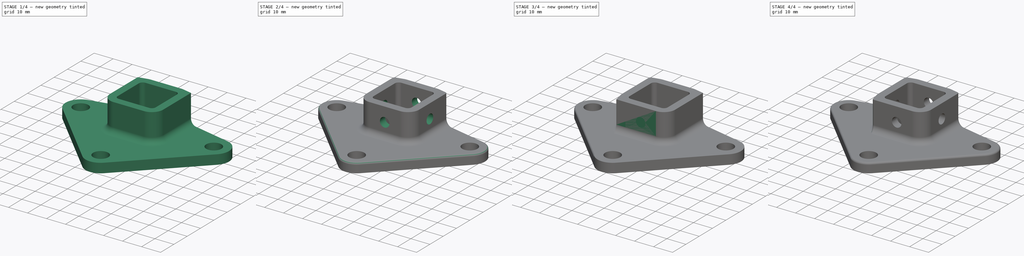
[diagram: build sequence overview — one tinted view per stage of 4, left to right]
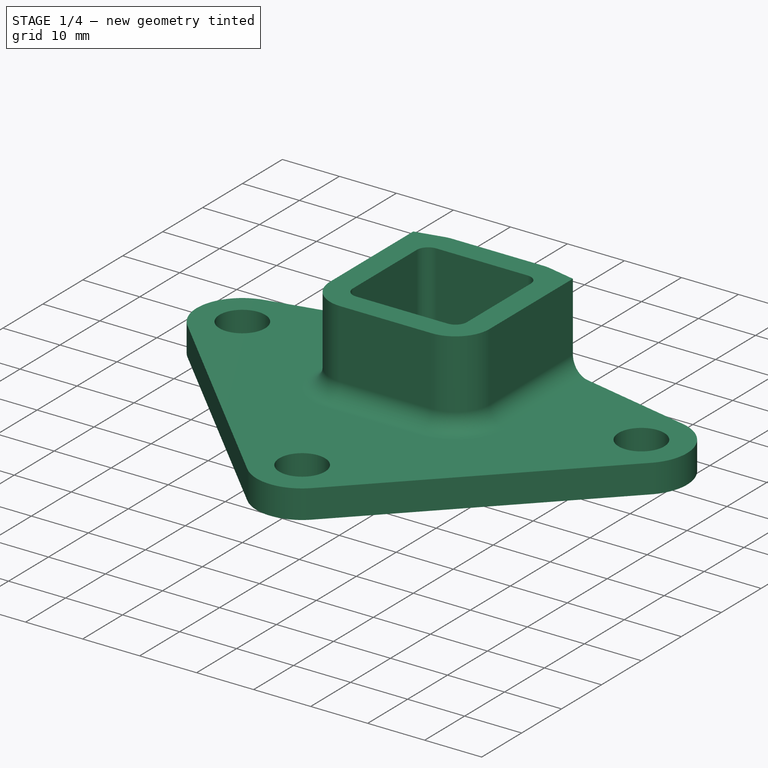
[diagram: stage 1 of 4 — iso view after this stage's code; geometry added in this stage tinted green]
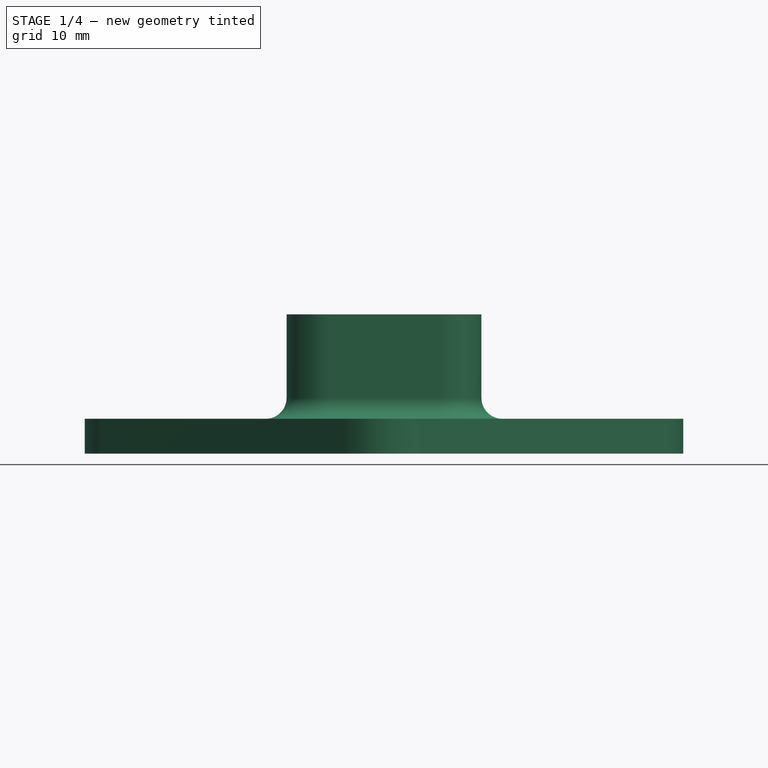
[diagram: stage 1 of 4 — front view after this stage's code; geometry added in this stage tinted green]
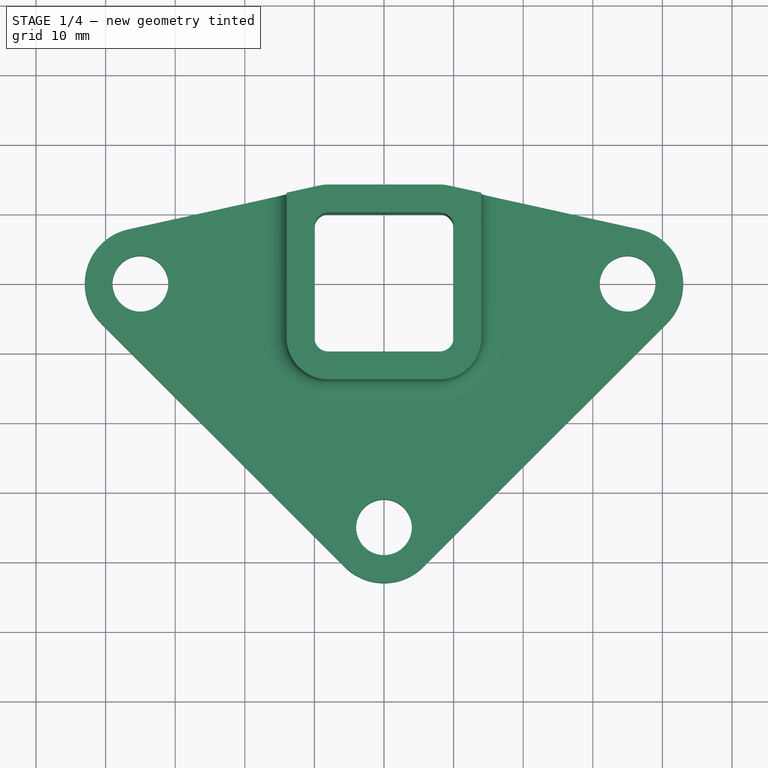
[diagram: stage 1 of 4 — top view after this stage's code; geometry added in this stage tinted green]
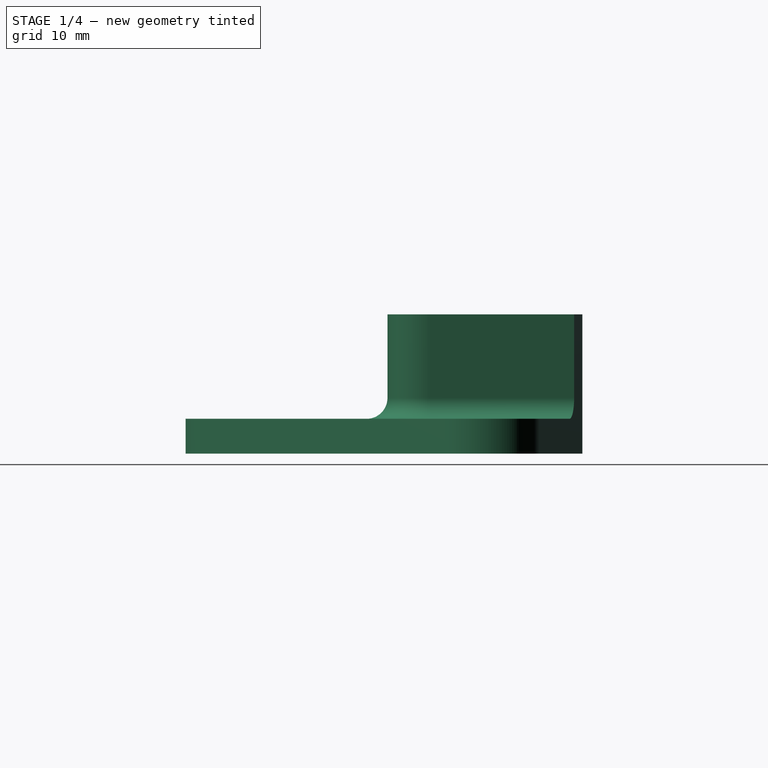
[diagram: stage 1 of 4 — right view after this stage's code; geometry added in this stage tinted green]
FCSTD DOCUMENT  (FreeCAD 0.18R15969 (Git))
Label: 2-way-bearing-holder
License: All rights reserved
LicenseURL: http://en.wikipedia.org/wiki/All_rights_reserved
objects: Sketcher::SketchObject×6, PartDesign::Pad×4, PartDesign::Fillet×4, PartDesign::Pocket×2, PartDesign::PolarPattern×2, PartDesign::Body×2
note: 26 computed .brp shape members not serialized (recipe doc carries the construction recipe); baked Part::Feature solids carry a one-line shape summary decoded from their .brp

FEATURE [PartDesign::Body] Body
  Group = -> [Sketch,Pad,Sketch001,Pad001,Fillet,Fillet001,Sketch002,Pocket,PolarPattern]
  Origin = -> Origin
  Tip = -> PolarPattern
FEATURE [Sketcher::SketchObject] Sketch003
  MapMode = 5
  Support = -> [XY_Plane001]
  sketch-geometry (27):
    g0: LineSegment StartX=-8 StartY=10 StartZ=0 EndX=8 EndY=10 EndZ=0
    g1: LineSegment StartX=10 StartY=8 StartZ=0 EndX=10 EndY=-8 EndZ=0
    g2: LineSegment StartX=8 StartY=-10 StartZ=0 EndX=-8 EndY=-10 EndZ=0
    g3: LineSegment StartX=-10 StartY=-8 StartZ=0 EndX=-10 EndY=8 EndZ=0
    g4: ArcOfCircle CenterX=-8 CenterY=8 CenterZ=0 NormalX=0 NormalY=0 NormalZ=1 AngleXU=0 Radius=2 StartAngle=1.5708 EndAngle=3.14159
    g5: ArcOfCircle CenterX=8 CenterY=8 CenterZ=0 NormalX=0 NormalY=0 NormalZ=1 AngleXU=0 Radius=2 StartAngle=0 EndAngle=1.5708
    g6: ArcOfCircle CenterX=8 CenterY=-8 CenterZ=0 NormalX=0 NormalY=0 NormalZ=1 AngleXU=0 Radius=2 StartAngle=4.71239 EndAngle=6.28319
    g7: ArcOfCircle CenterX=-8 CenterY=-8 CenterZ=0 NormalX=0 NormalY=0 NormalZ=1 AngleXU=0 Radius=2 StartAngle=3.14159 EndAngle=4.71239
    g8: LineSegment [constr] StartX=-8 StartY=8 StartZ=0 EndX=-9e-16 EndY=0 EndZ=0
    g9: LineSegment [constr] StartX=0 StartY=0 StartZ=0 EndX=8 EndY=8 EndZ=0
    g10: LineSegment [constr] StartX=0 StartY=0 StartZ=0 EndX=-8 EndY=-8 EndZ=0
    g11: LineSegment StartX=-8 StartY=14 StartZ=0 EndX=8 EndY=14 EndZ=0
    g12: LineSegment StartX=9.29165 StartY=13.8593 StartZ=0 EndX=36.7222 EndY=7.81243 EndZ=0
    g13: LineSegment StartX=40.6569 StartY=-5.65685 StartZ=0 EndX=5.65685 EndY=-40.6569 EndZ=0
    g14: LineSegment StartX=-5.65685 StartY=-40.6569 StartZ=0 EndX=-40.6569 EndY=-5.65685 EndZ=0
    g15: ArcOfCircle CenterX=8 CenterY=8 CenterZ=0 NormalX=0 NormalY=0 NormalZ=1 AngleXU=0 Radius=6 StartAngle=1.35382 EndAngle=1.5708
    g16: ArcOfCircle CenterX=35 CenterY=0 CenterZ=0 NormalX=0 NormalY=0 NormalZ=1 AngleXU=0 Radius=8 StartAngle=5.49779 EndAngle=7.63701
    g17: ArcOfCircle CenterX=0 CenterY=-35 CenterZ=0 NormalX=0 NormalY=0 NormalZ=1 AngleXU=0 Radius=8 StartAngle=3.92699 EndAngle=5.49779
    g18: LineSegment [constr] StartX=0 StartY=0 StartZ=0 EndX=35 EndY=0 EndZ=0
    g19: LineSegment [constr] StartX=0 StartY=0 StartZ=0 EndX=0 EndY=-35 EndZ=0
    g20: Circle CenterX=35 CenterY=0 CenterZ=0 NormalX=0 NormalY=0 NormalZ=1 AngleXU=0 Radius=4
    g21: Circle CenterX=0 CenterY=-35 CenterZ=0 NormalX=0 NormalY=0 NormalZ=1 AngleXU=0 Radius=4
    g22: LineSegment StartX=-9.29165 StartY=13.8593 StartZ=0 EndX=-36.7222 EndY=7.81243 EndZ=0
    g23: ArcOfCircle CenterX=-8 CenterY=8 CenterZ=0 NormalX=0 NormalY=0 NormalZ=1 AngleXU=0 Radius=6 StartAngle=1.5708 EndAngle=1.78777
    g24: Circle CenterX=-35 CenterY=0 CenterZ=0 NormalX=0 NormalY=0 NormalZ=1 AngleXU=0 Radius=4
    g25: LineSegment [constr] StartX=-35 StartY=0 StartZ=0 EndX=0 EndY=0 EndZ=0
    g26: ArcOfCircle CenterX=-35 CenterY=0 CenterZ=0 NormalX=0 NormalY=0 NormalZ=1 AngleXU=0 Radius=8 StartAngle=1.78777 EndAngle=3.92699
  constraints (61):
    c: Horizontal(g0)
    c: Horizontal(g2)
    c: Vertical(g1)
    c: Vertical(g3)
    c: Tangent(g3,g4) = 1.5708
    c: Tangent(g0,g4) = 1.5708
    c: Tangent(g0,g5) = 1.5708
    c: Tangent(g1,g5) = 1.5708
    c: Tangent(g1,g6) = 1.5708
    c: Tangent(g2,g6) = 1.5708
    c: Tangent(g2,g7) = 1.5708
    c: Tangent(g3,g7) = 1.5708
    c: Radius(g7) = 2
    c: Equal(g7,g4)
    c: Equal(g7,g5)
    c: Equal(g7,g6)
    c: DistanceX(g3,g1) = 20
    c: Equal(g3,g0)
    c: Coincident(g8,g4)
    c: Coincident(g8,g-1)
    c: Coincident(g9,g-1)
    c: Coincident(g9,g5)
    c: Coincident(g10,g-1)
    c: Coincident(g10,g7)
    c: Equal(g10,g8)
    c: Equal(g8,g9)
    c: Horizontal(g11)
    c: Tangent(g11,g15) = 1.5708
    c: Tangent(g12,g15) = 1.5708
    c: Tangent(g12,g16) = 1.5708
    c: Tangent(g13,g16) = 1.5708
    c: Tangent(g13,g17) = 1.5708
    c: Tangent(g14,g17) = 1.5708
    c: Coincident(g15,g5)
    c: PointOnObject(g16,g-1)
    c: PointOnObject(g17,g-2)
    c: Equal(g17,g16)
    c: Coincident(g18,g-1)
    c: Coincident(g18,g16)
    c: Coincident(g19,g-1)
    c: Coincident(g19,g17)
    c: Equal(g19,g18)
    c: DistanceX(g18,g18) = 35
    c: Coincident(g20,g16)
    c: Coincident(g21,g17)
    c: Equal(g21,g20)
    c: Radius(g20) = 4
    c: Radius(g16) = 8
    c: Tangent(g22,g23) = -1.5708
    c: Tangent(g11,g23) = 1.5708
    c: Coincident(g23,g4)
    c: DistanceY(g0,g11) = 4
    c: PointOnObject(g24,g-1)
    c: Equal(g24,g20)
    c: Coincident(g25,g24)
    c: Coincident(g25,g-1)
    c: Equal(g25,g18)
    c: Tangent(g14,g26) = 1.5708
    c: Tangent(g22,g26) = -1.5708
    c: Coincident(g26,g24)
    c: Equal(g26,g16)
FEATURE [PartDesign::Pad] Pad002
  Length = 5
  Length2 = 100
  Profile = -> Sketch003
  Refine = true
  Type = 0
FEATURE [Sketcher::SketchObject] Sketch004
  ExternalGeometry = -> [Pad002]
  MapMode = 5
  Placement = pos=(0,0,5) rot=(0,0,1;0rad)
  Support = -> [Pad002]
  sketch-geometry (18):
    g0: LineSegment StartX=-14 StartY=12.8214 StartZ=0 EndX=-14 EndY=-8 EndZ=0
    g1: LineSegment StartX=-8 StartY=-14 StartZ=0 EndX=8 EndY=-14 EndZ=0
    g2: LineSegment StartX=14 StartY=-8 StartZ=0 EndX=14 EndY=12.8214 EndZ=0
    g3: ArcOfCircle CenterX=-8 CenterY=-8 CenterZ=0 NormalX=0 NormalY=0 NormalZ=1 AngleXU=0 Radius=6 StartAngle=3.14159 EndAngle=4.71239
    g4: ArcOfCircle CenterX=8 CenterY=-8 CenterZ=0 NormalX=0 NormalY=0 NormalZ=1 AngleXU=0 Radius=6 StartAngle=4.71239 EndAngle=6.28319
    g5: LineSegment StartX=-14 StartY=12.8214 StartZ=0 EndX=-9.29165 EndY=13.8593 EndZ=0
    g6: LineSegment StartX=9.29165 StartY=13.8593 StartZ=0 EndX=14 EndY=12.8214 EndZ=0
    g7: LineSegment StartX=8 StartY=14 StartZ=0 EndX=-8 EndY=14 EndZ=0
    g8: ArcOfCircle CenterX=-8 CenterY=8 CenterZ=0 NormalX=0 NormalY=0 NormalZ=1 AngleXU=0 Radius=6 StartAngle=1.5708 EndAngle=1.78777
    g9: ArcOfCircle CenterX=8 CenterY=8 CenterZ=0 NormalX=0 NormalY=0 NormalZ=1 AngleXU=0 Radius=6 StartAngle=1.35382 EndAngle=1.5708
    g10: LineSegment StartX=-8 StartY=10 StartZ=0 EndX=8 EndY=10 EndZ=0
    g11: LineSegment StartX=10 StartY=8 StartZ=0 EndX=10 EndY=-8 EndZ=0
    g12: LineSegment StartX=8 StartY=-10 StartZ=0 EndX=-8 EndY=-10 EndZ=0
    g13: LineSegment StartX=-10 StartY=-8 StartZ=0 EndX=-10 EndY=8 EndZ=0
    g14: ArcOfCircle CenterX=-8 CenterY=8 CenterZ=0 NormalX=0 NormalY=0 NormalZ=1 AngleXU=0 Radius=2 StartAngle=1.5708 EndAngle=3.14159
    g15: ArcOfCircle CenterX=8 CenterY=8 CenterZ=0 NormalX=0 NormalY=0 NormalZ=1 AngleXU=0 Radius=2 StartAngle=0 EndAngle=1.5708
    g16: ArcOfCircle CenterX=8 CenterY=-8 CenterZ=0 NormalX=0 NormalY=0 NormalZ=1 AngleXU=0 Radius=2 StartAngle=4.71239 EndAngle=6.28319
    g17: ArcOfCircle CenterX=-8 CenterY=-8 CenterZ=0 NormalX=0 NormalY=0 NormalZ=1 AngleXU=0 Radius=2 StartAngle=3.14159 EndAngle=4.71239
  constraints (37):
    c: PointOnObject(g0,g-3)
    c: Horizontal(g1)
    c: PointOnObject(g2,g-7)
    c: Vertical(g2)
    c: Tangent(g0,g3) = -1.5708
    c: Tangent(g1,g3) = -1.5708
    c: Tangent(g1,g4) = -1.5708
    c: Tangent(g2,g4) = -1.5708
    c: Coincident(g5,g0)
    c: Coincident(g5,g-4)
    c: Coincident(g6,g-7)
    c: Coincident(g6,g2)
    c: Coincident(g7,g-6)
    c: Coincident(g8,g5)
    c: Coincident(g9,g6)
    c: Coincident(g9,g7)
    c: Tangent(g8,g7) = -1.5708
    c: Tangent(g13,g14) = 1.5708
    c: Tangent(g10,g14) = 1.5708
    c: Tangent(g10,g15) = 1.5708
    c: Tangent(g11,g15) = 1.5708
    c: Tangent(g11,g16) = 1.5708
    c: Tangent(g12,g16) = 1.5708
    c: Tangent(g12,g17) = 1.5708
    c: Tangent(g13,g17) = 1.5708
    c: Coincident(g3,g-11)
    c: Coincident(g17,g3)
    c: Coincident(g4,g-10)
    c: Coincident(g16,g4)
    c: Coincident(g15,g9)
    c: Coincident(g14,g8)
    c: Coincident(g8,g-8)
    c: Coincident(g10,g-8)
    c: Coincident(g12,g-10)
    c: Vertical(g11)
    c: DistanceY(g1,g12) = 4
    c: Vertical(g0)
FEATURE [PartDesign::Pad] Pad003
  BaseFeature = -> Pad002
  Length = 15
  Length2 = 100
  Profile = -> Sketch004
  Refine = true
  Type = 0
FEATURE [PartDesign::Fillet] Fillet002
  Base = -> Pad003 [Edge43]
  BaseFeature = -> Pad003
  Radius = 3
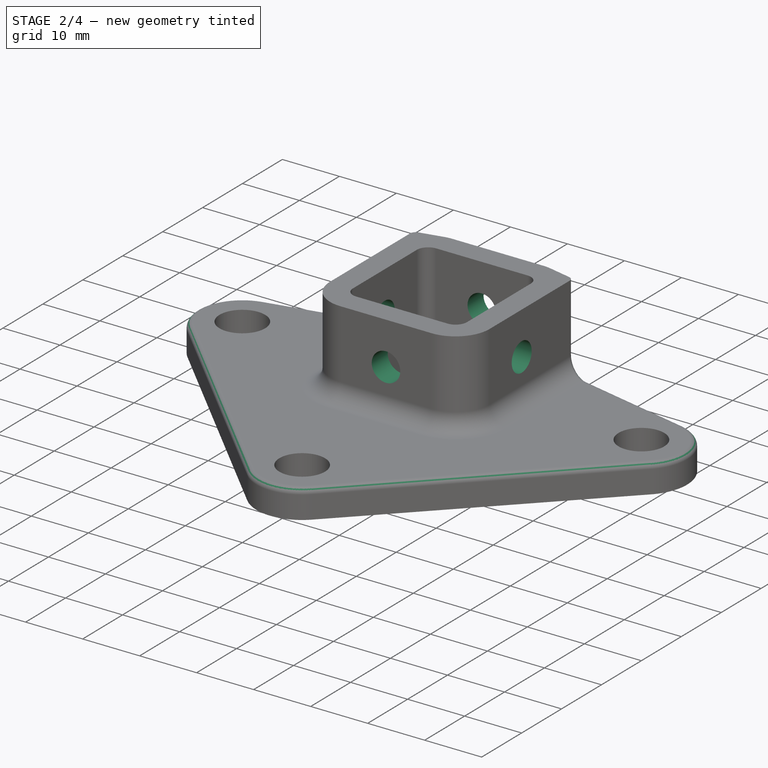
[diagram: stage 2 of 4 — iso view after this stage's code; geometry added in this stage tinted green]
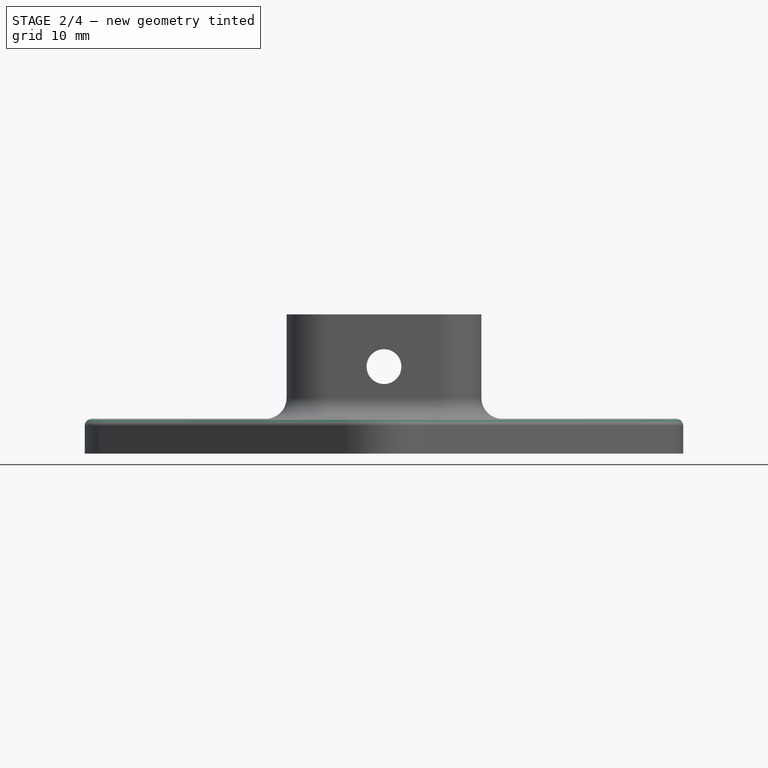
[diagram: stage 2 of 4 — front view after this stage's code; geometry added in this stage tinted green]
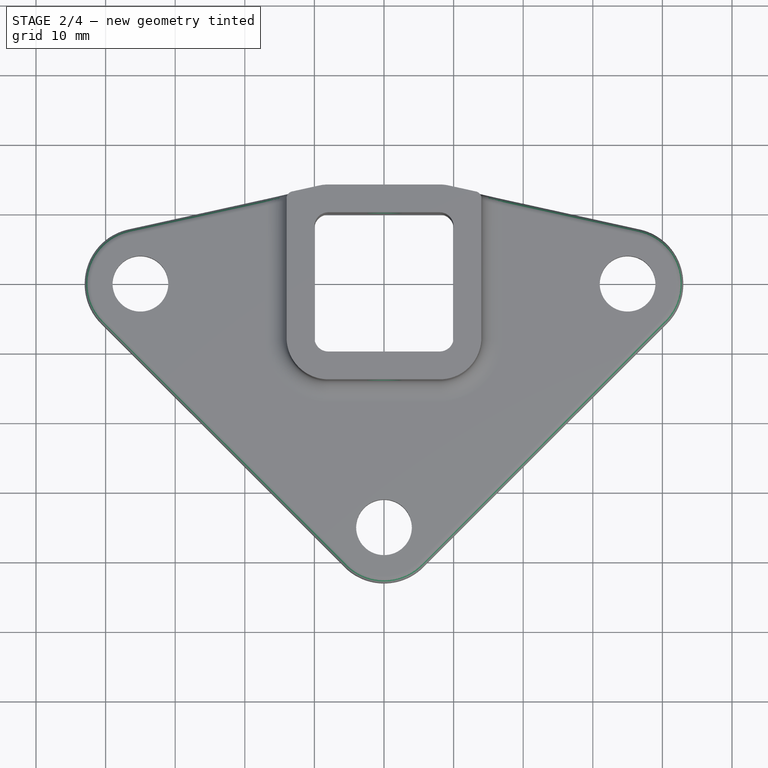
[diagram: stage 2 of 4 — top view after this stage's code; geometry added in this stage tinted green]
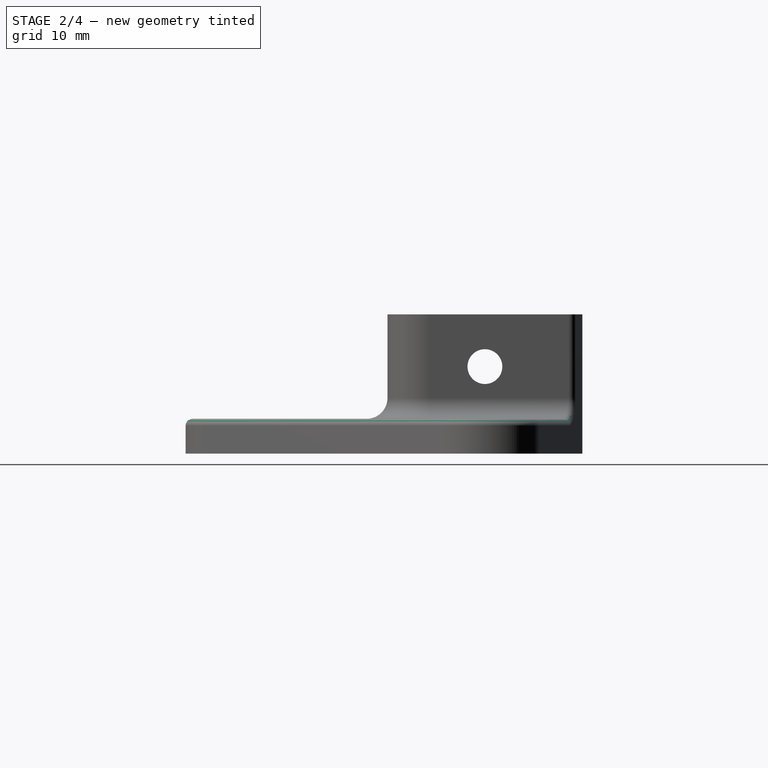
[diagram: stage 2 of 4 — right view after this stage's code; geometry added in this stage tinted green]
FEATURE [PartDesign::Fillet] Fillet003
  Base = -> Fillet002 [Edge7]
  BaseFeature = -> Fillet002
  Radius = 1
FEATURE [Sketcher::SketchObject] Sketch005
  MapMode = 5
  Placement = pos=(3e-16,14,1e-16) rot=(0,0.707107,0.707107;3.14159rad)
  Support = -> [Fillet003]
  sketch-geometry (1):
    g0: Circle CenterX=0 CenterY=12.5 CenterZ=0 NormalX=0 NormalY=0 NormalZ=1 AngleXU=0 Radius=2.5
  constraints (3):
    c: PointOnObject(g0,g-2)
    c: Radius(g0) = 2.5
    c: DistanceY(g-1,g0) = 12.5
FEATURE [PartDesign::Pocket] Pocket001
  BaseFeature = -> Fillet003
  Length = 10
  Length2 = 100
  Midplane = true
  Profile = -> Sketch005
  Refine = true
  Type = 0
FEATURE [PartDesign::PolarPattern] PolarPattern001
  Angle = 360
  Axis = -> Z_Axis001
  BaseFeature = -> Pocket001
  Occurrences = 4
  Originals = -> [Pocket001]
  Refine = true
FEATURE [PartDesign::Body] Body001
  Group = -> [Sketch003,Pad002,Sketch004,Pad003,Fillet002,Fillet003,Sketch005,Pocket001,PolarPattern001]
  Origin = -> Origin001
  Tip = -> PolarPattern001
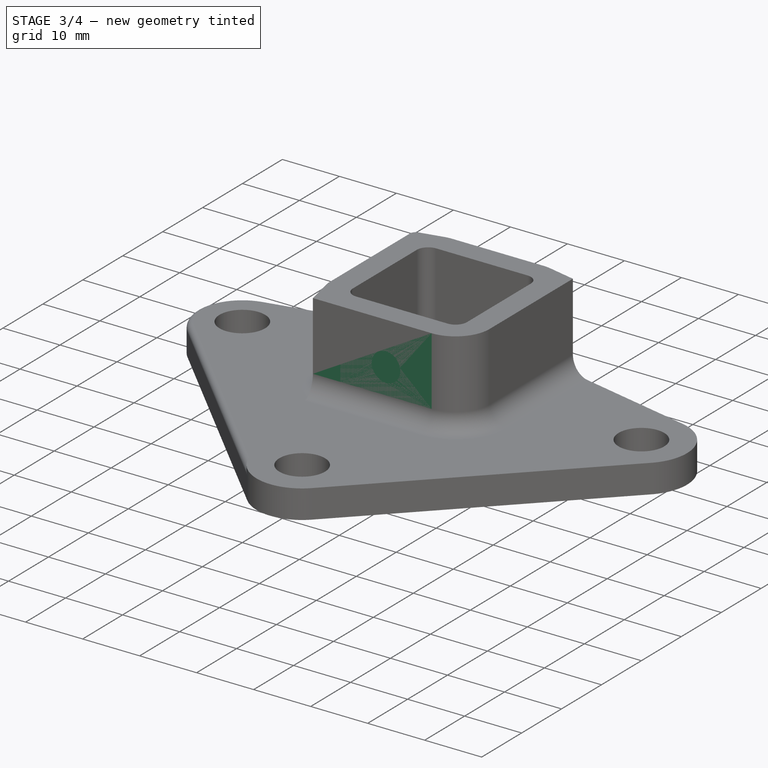
[diagram: stage 3 of 4 — iso view after this stage's code; geometry added in this stage tinted green]
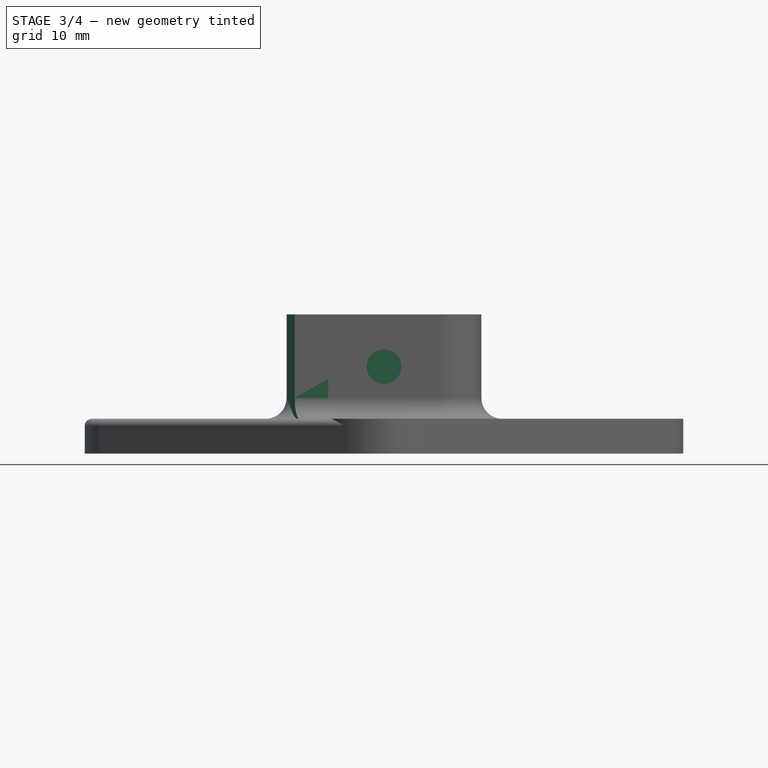
[diagram: stage 3 of 4 — front view after this stage's code; geometry added in this stage tinted green]
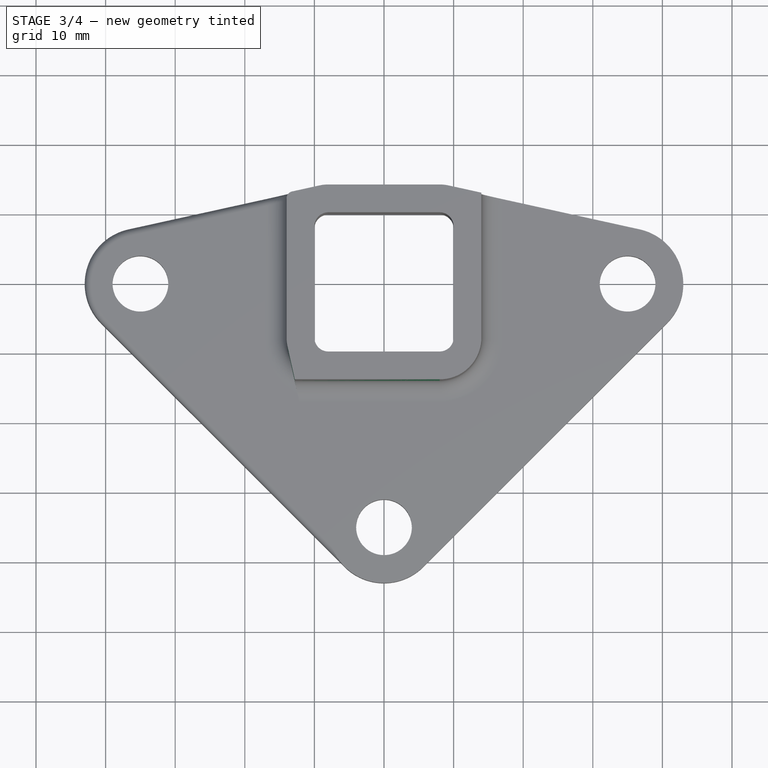
[diagram: stage 3 of 4 — top view after this stage's code; geometry added in this stage tinted green]
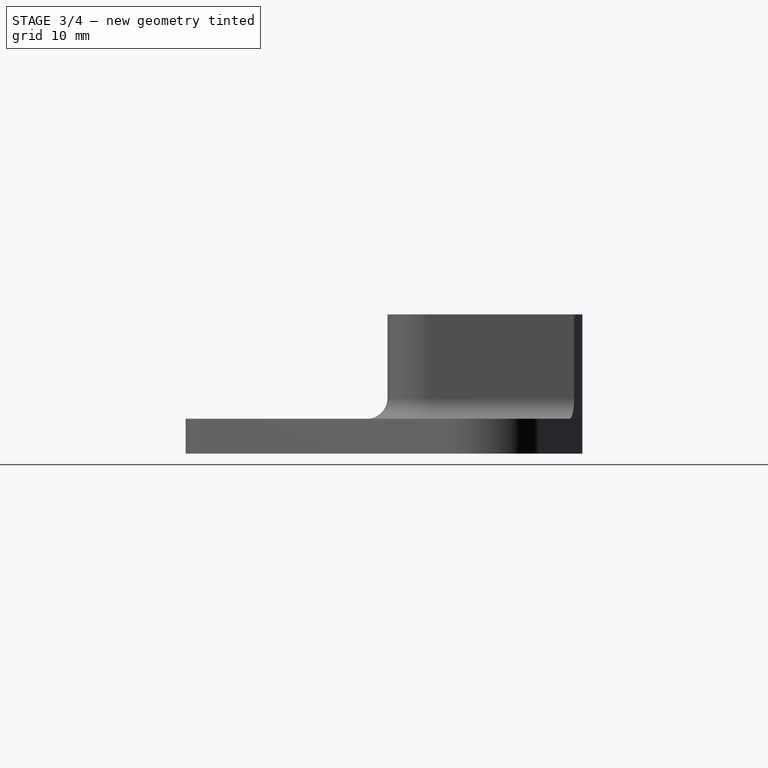
[diagram: stage 3 of 4 — right view after this stage's code; geometry added in this stage tinted green]
FEATURE [Sketcher::SketchObject] Sketch
  MapMode = 5
  Support = -> [XY_Plane]
  sketch-geometry (25):
    g0: LineSegment StartX=-8 StartY=10 StartZ=0 EndX=8 EndY=10 EndZ=0
    g1: LineSegment StartX=10 StartY=8 StartZ=0 EndX=10 EndY=-8 EndZ=0
    g2: LineSegment StartX=8 StartY=-10 StartZ=0 EndX=-8 EndY=-10 EndZ=0
    g3: LineSegment StartX=-10 StartY=-8 StartZ=0 EndX=-10 EndY=8 EndZ=0
    g4: ArcOfCircle CenterX=-8 CenterY=8 CenterZ=0 NormalX=0 NormalY=0 NormalZ=1 AngleXU=0 Radius=2 StartAngle=1.5708 EndAngle=3.14159
    g5: ArcOfCircle CenterX=8 CenterY=8 CenterZ=0 NormalX=0 NormalY=0 NormalZ=1 AngleXU=0 Radius=2 StartAngle=0 EndAngle=1.5708
    g6: ArcOfCircle CenterX=8 CenterY=-8 CenterZ=0 NormalX=0 NormalY=0 NormalZ=1 AngleXU=0 Radius=2 StartAngle=4.71239 EndAngle=6.28319
    g7: ArcOfCircle CenterX=-8 CenterY=-8 CenterZ=0 NormalX=0 NormalY=0 NormalZ=1 AngleXU=0 Radius=2 StartAngle=3.14159 EndAngle=4.71239
    g8: LineSegment [constr] StartX=-8 StartY=8 StartZ=0 EndX=0 EndY=0 EndZ=0
    g9: LineSegment [constr] StartX=0 StartY=0 StartZ=0 EndX=8 EndY=8 EndZ=0
    g10: LineSegment [constr] StartX=0 StartY=0 StartZ=0 EndX=-8 EndY=-8 EndZ=0
    g11: LineSegment StartX=-8 StartY=14 StartZ=0 EndX=8 EndY=14 EndZ=0
    g12: LineSegment StartX=9.29165 StartY=13.8593 StartZ=0 EndX=36.7222 EndY=7.81243 EndZ=0
    g13: LineSegment StartX=40.6569 StartY=-5.65685 StartZ=0 EndX=5.65685 EndY=-40.6569 EndZ=0
    g14: LineSegment StartX=-7.81243 StartY=-36.7222 StartZ=0 EndX=-13.8593 EndY=-9.29165 EndZ=0
    g15: LineSegment StartX=-14 StartY=-8 StartZ=0 EndX=-14 EndY=8 EndZ=0
    g16: ArcOfCircle CenterX=-8 CenterY=8 CenterZ=0 NormalX=0 NormalY=0 NormalZ=1 AngleXU=0 Radius=6 StartAngle=1.5708 EndAngle=3.14159
    g17: ArcOfCircle CenterX=8 CenterY=8 CenterZ=0 NormalX=0 NormalY=0 NormalZ=1 AngleXU=0 Radius=6 StartAngle=1.35382 EndAngle=1.5708
    g18: ArcOfCircle CenterX=35 CenterY=0 CenterZ=0 NormalX=0 NormalY=0 NormalZ=1 AngleXU=0 Radius=8 StartAngle=5.49779 EndAngle=7.63701
    g19: ArcOfCircle CenterX=0 CenterY=-35 CenterZ=0 NormalX=0 NormalY=0 NormalZ=1 AngleXU=0 Radius=8 StartAngle=3.35857 EndAngle=5.49779
    g20: ArcOfCircle CenterX=-8 CenterY=-8 CenterZ=0 NormalX=0 NormalY=0 NormalZ=1 AngleXU=0 Radius=6 StartAngle=3.14159 EndAngle=3.35857
    g21: LineSegment [constr] StartX=0 StartY=0 StartZ=0 EndX=35 EndY=0 EndZ=0
    g22: LineSegment [constr] StartX=0 StartY=0 StartZ=0 EndX=0 EndY=-35 EndZ=0
    g23: Circle CenterX=35 CenterY=0 CenterZ=0 NormalX=0 NormalY=0 NormalZ=1 AngleXU=0 Radius=4
    g24: Circle CenterX=0 CenterY=-35 CenterZ=0 NormalX=0 NormalY=0 NormalZ=1 AngleXU=0 Radius=4
  constraints (56):
    c: Horizontal(g0)
    c: Horizontal(g2)
    c: Vertical(g1)
    c: Vertical(g3)
    c: Tangent(g3,g4) = 1.5708
    c: Tangent(g0,g4) = 1.5708
    c: Tangent(g0,g5) = 1.5708
    c: Tangent(g1,g5) = 1.5708
    c: Tangent(g1,g6) = 1.5708
    c: Tangent(g2,g6) = 1.5708
    c: Tangent(g2,g7) = 1.5708
    c: Tangent(g3,g7) = 1.5708
    c: Radius(g7) = 2
    c: Equal(g7,g4)
    c: Equal(g7,g5)
    c: Equal(g7,g6)
    c: DistanceX(g3,g1) = 20
    c: Equal(g3,g0)
    c: Coincident(g8,g4)
    c: Coincident(g8,g-1)
    c: Coincident(g9,g-1)
    c: Coincident(g9,g5)
    c: Coincident(g10,g-1)
    c: Coincident(g10,g7)
    c: Equal(g10,g8)
    c: Equal(g8,g9)
    c: Horizontal(g11)
    c: Vertical(g15)
    c: Tangent(g15,g16) = 1.5708
    c: Tangent(g11,g16) = 1.5708
    c: Tangent(g11,g17) = 1.5708
    c: Tangent(g12,g17) = 1.5708
    c: Tangent(g12,g18) = 1.5708
    c: Tangent(g13,g18) = 1.5708
    c: Tangent(g13,g19) = 1.5708
    c: Tangent(g14,g19) = 1.5708
    c: Tangent(g14,g20) = 1.5708
    c: Tangent(g15,g20) = 1.5708
    c: Coincident(g16,g4)
    c: Coincident(g17,g5)
    c: Coincident(g20,g7)
    c: DistanceY(g0,g11) = 4
    c: PointOnObject(g18,g-1)
    c: PointOnObject(g19,g-2)
    c: Equal(g19,g18)
    c: Coincident(g21,g-1)
    c: Coincident(g21,g18)
    c: Coincident(g22,g-1)
    c: Coincident(g22,g19)
    c: Equal(g22,g21)
    c: DistanceX(g21,g21) = 35
    c: Coincident(g23,g18)
    c: Coincident(g24,g19)
    c: Equal(g24,g23)
    c: Radius(g23) = 4
    c: Radius(g18) = 8
FEATURE [PartDesign::Pad] Pad
  Length = 5
  Length2 = 100
  Profile = -> Sketch
  Refine = true
  Type = 0
FEATURE [Sketcher::SketchObject] Sketch001
  ExternalGeometry = -> [Pad]
  MapMode = 5
  Placement = pos=(0,0,5) rot=(0,0,1;0rad)
  Support = -> [Pad]
  sketch-geometry (18):
    g0: LineSegment StartX=-8 StartY=10 StartZ=0 EndX=8 EndY=10 EndZ=0
    g1: LineSegment StartX=10 StartY=8 StartZ=0 EndX=10 EndY=-8 EndZ=0
    g2: LineSegment StartX=8 StartY=-10 StartZ=0 EndX=-8 EndY=-10 EndZ=0
    g3: LineSegment StartX=-10 StartY=-8 StartZ=0 EndX=-10 EndY=8 EndZ=0
    g4: ArcOfCircle CenterX=-8 CenterY=8 CenterZ=0 NormalX=0 NormalY=0 NormalZ=1 AngleXU=0 Radius=2 StartAngle=1.5708 EndAngle=3.14159
    g5: ArcOfCircle CenterX=8 CenterY=8 CenterZ=0 NormalX=0 NormalY=0 NormalZ=1 AngleXU=0 Radius=2 StartAngle=0 EndAngle=1.5708
    g6: ArcOfCircle CenterX=8 CenterY=-8 CenterZ=0 NormalX=0 NormalY=0 NormalZ=1 AngleXU=0 Radius=2 StartAngle=4.71239 EndAngle=6.28319
    g7: ArcOfCircle CenterX=-8 CenterY=-8 CenterZ=0 NormalX=0 NormalY=0 NormalZ=1 AngleXU=0 Radius=2 StartAngle=3.14159 EndAngle=4.71239
    g8: LineSegment StartX=-8 StartY=14 StartZ=0 EndX=8 EndY=14 EndZ=0
    g9: LineSegment StartX=14 StartY=12.8214 StartZ=0 EndX=14 EndY=-8 EndZ=0
    g10: LineSegment StartX=8 StartY=-14 StartZ=0 EndX=-12.8214 EndY=-14 EndZ=0
    g11: LineSegment StartX=-14 StartY=-8 StartZ=0 EndX=-14 EndY=8 EndZ=0
    g12: ArcOfCircle CenterX=-8 CenterY=8 CenterZ=0 NormalX=0 NormalY=0 NormalZ=1 AngleXU=0 Radius=6 StartAngle=1.5708 EndAngle=3.14159
    g13: ArcOfCircle CenterX=8 CenterY=-8 CenterZ=0 NormalX=0 NormalY=0 NormalZ=1 AngleXU=0 Radius=6 StartAngle=4.71239 EndAngle=6.28319
    g14: ArcOfCircle CenterX=-8 CenterY=-8 CenterZ=0 NormalX=0 NormalY=0 NormalZ=1 AngleXU=0 Radius=6 StartAngle=3.14159 EndAngle=3.35857
    g15: ArcOfCircle CenterX=8 CenterY=8 CenterZ=0 NormalX=0 NormalY=0 NormalZ=1 AngleXU=0 Radius=6 StartAngle=1.35382 EndAngle=1.5708
    g16: LineSegment StartX=14 StartY=12.8214 StartZ=0 EndX=9.29165 EndY=13.8593 EndZ=0
    g17: LineSegment StartX=-12.8214 StartY=-14 StartZ=0 EndX=-13.8593 EndY=-9.29165 EndZ=0
  constraints (43):
    c: Coincident(g1,g-10)
    c: Coincident(g1,g-9)
    c: Coincident(g2,g-8)
    c: Coincident(g2,g-7)
    c: Coincident(g3,g-6)
    c: Coincident(g3,g-5)
    c: Coincident(g0,g-10)
    c: Coincident(g0,g-4)
    c: Coincident(g4,g-4)
    c: Coincident(g4,g3)
    c: Coincident(g4,g0)
    c: Coincident(g5,g-10)
    c: Coincident(g5,g0)
    c: Coincident(g5,g1)
    c: Coincident(g6,g-8)
    c: Coincident(g6,g2)
    c: Coincident(g6,g1)
    c: Coincident(g7,g-6)
    c: Coincident(g7,g2)
    c: Coincident(g7,g3)
    c: Tangent(g11,g12) = 1.5708
    c: Tangent(g8,g12) = 1.5708
    c: Tangent(g9,g13) = 1.5708
    c: Tangent(g10,g13) = 1.5708
    c: Coincident(g13,g6)
    c: Coincident(g4,g12)
    c: Horizontal(g8)
    c: Vertical(g9)
    c: Horizontal(g10)
    c: DistanceY(g0,g8) = 4
    c: Coincident(g14,g7)
    c: Coincident(g14,g11)
    c: Coincident(g14,g-12)
    c: Coincident(g15,g5)
    c: Coincident(g15,g8)
    c: Coincident(g15,g-11)
    c: PointOnObject(g9,g-11)
    c: PointOnObject(g10,g-12)
    c: Coincident(g16,g9)
    c: Coincident(g16,g15)
    c: Coincident(g17,g10)
    c: Coincident(g17,g14)
    c: Equal(g13,g12)
FEATURE [PartDesign::Pad] Pad001
  BaseFeature = -> Pad
  Length = 15
  Length2 = 100
  Profile = -> Sketch001
  Refine = true
  Type = 0
FEATURE [PartDesign::Fillet] Fillet
  Base = -> Pad001 [Edge34,Edge35,Edge36]
  BaseFeature = -> Pad001
  Radius = 3
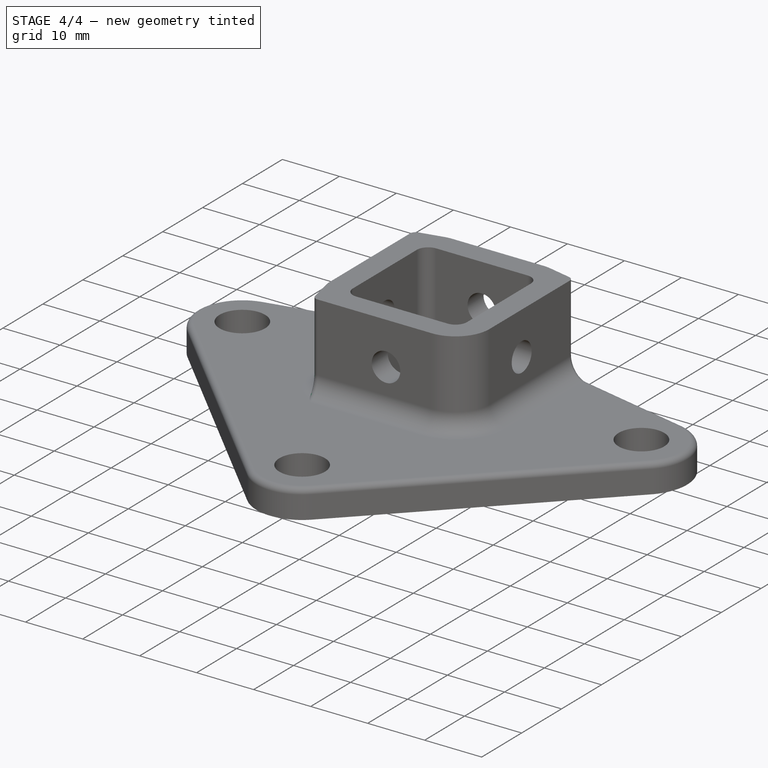
[diagram: stage 4 of 4 — iso view after this stage's code; geometry added in this stage tinted green]
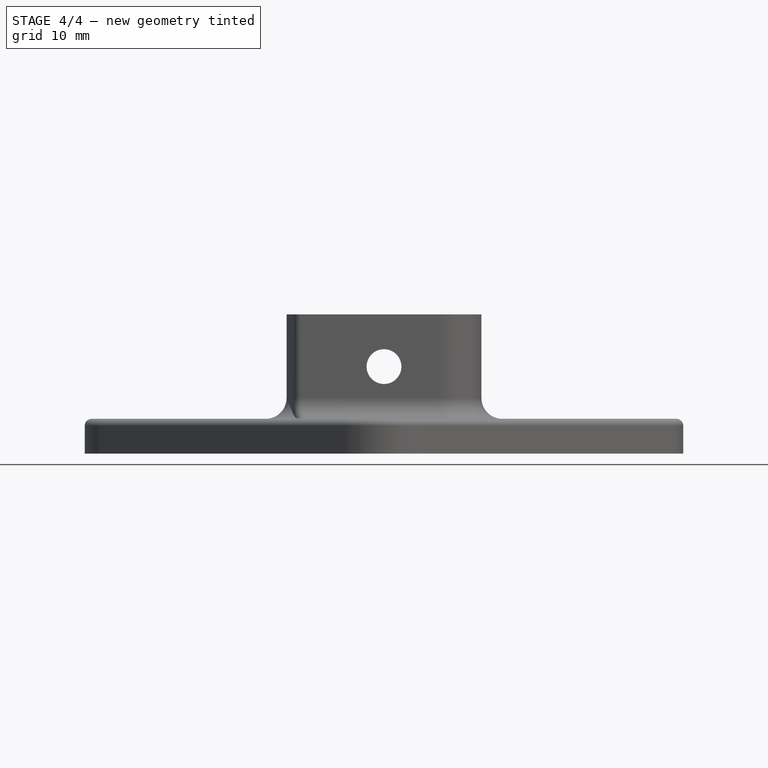
[diagram: stage 4 of 4 — front view after this stage's code; geometry added in this stage tinted green]
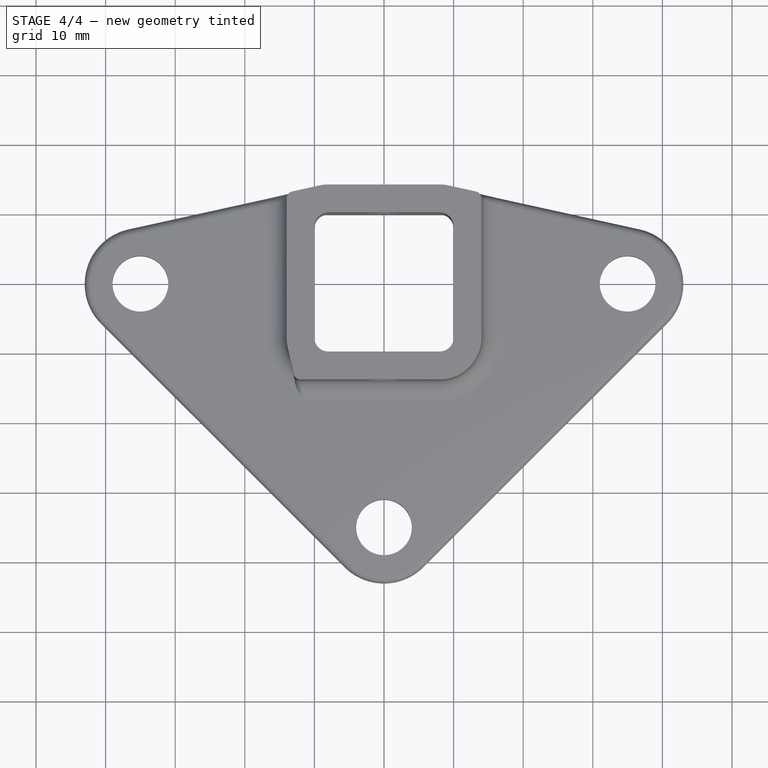
[diagram: stage 4 of 4 — top view after this stage's code; geometry added in this stage tinted green]
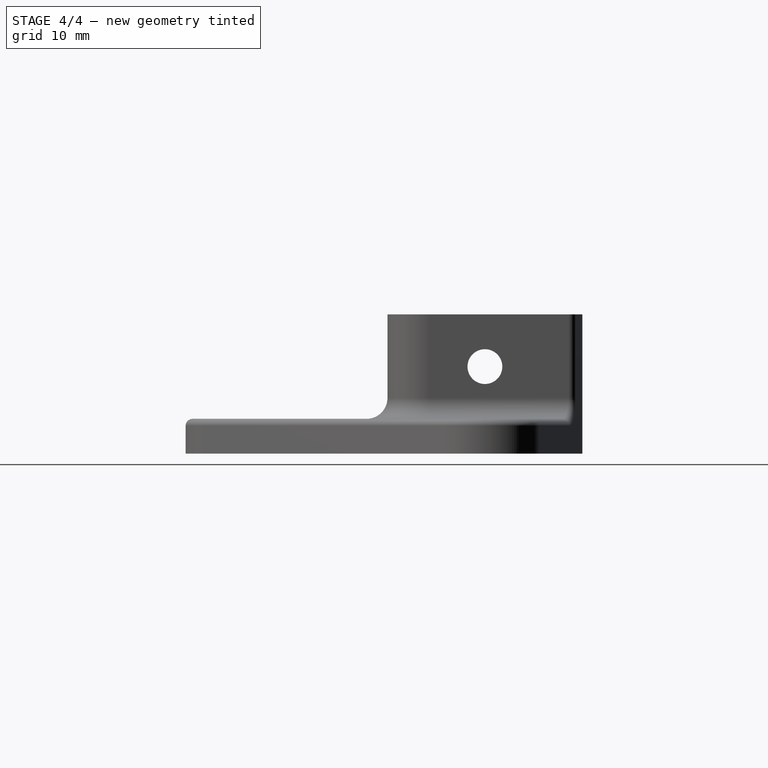
[diagram: stage 4 of 4 — right view after this stage's code; geometry added in this stage tinted green]
FEATURE [PartDesign::Fillet] Fillet001
  Base = -> Fillet [Edge29]
  BaseFeature = -> Fillet
  Radius = 1
FEATURE [Sketcher::SketchObject] Sketch002
  MapMode = 5
  Placement = pos=(0,14,0) rot=(0,0.707107,0.707107;3.14159rad)
  Support = -> [Fillet001]
  sketch-geometry (2):
    g0: LineSegment [constr] StartX=0 StartY=0 StartZ=0 EndX=0 EndY=12.5 EndZ=0
    g1: Circle CenterX=0 CenterY=12.5 CenterZ=0 NormalX=0 NormalY=0 NormalZ=1 AngleXU=0 Radius=2.5
  constraints (5):
    c: Coincident(g0,g-1)
    c: PointOnObject(g0,g-2)
    c: Coincident(g1,g0)
    c: Radius(g1) = 2.5
    c: DistanceY(g0,g0) = 12.5
FEATURE [PartDesign::Pocket] Pocket
  BaseFeature = -> Fillet001
  Length = 9
  Length2 = 100
  Midplane = true
  Profile = -> Sketch002
  Refine = true
  Type = 0
FEATURE [PartDesign::PolarPattern] PolarPattern
  Angle = 360
  Axis = -> Z_Axis
  BaseFeature = -> Pocket
  Occurrences = 4
  Originals = -> [Pocket]
  Refine = true
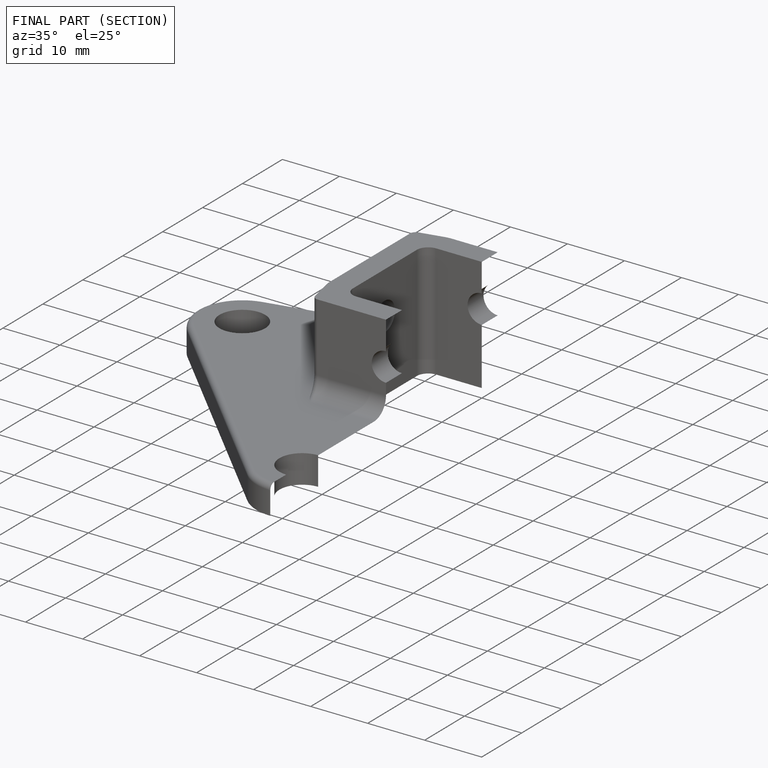
[diagram: finished part — half-section view (interior)]
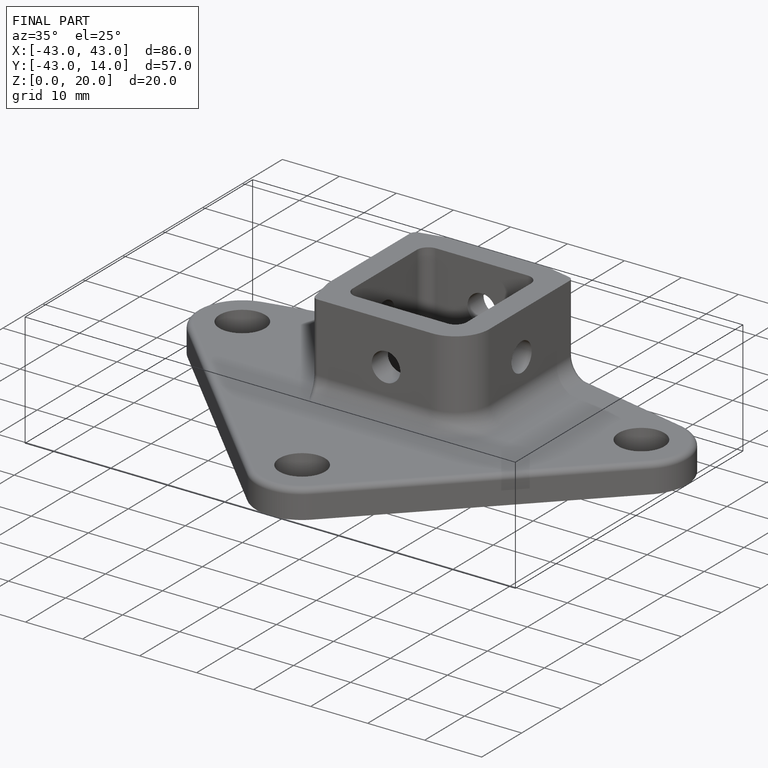
[diagram: finished part — iso view with bounding-box wireframe]
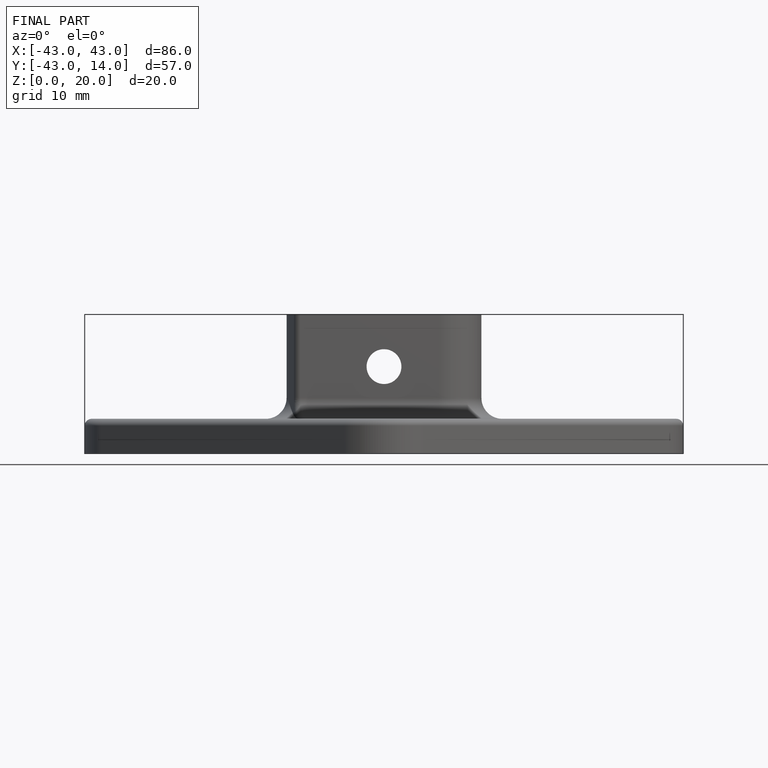
[diagram: finished part — front view with bounding-box wireframe]
